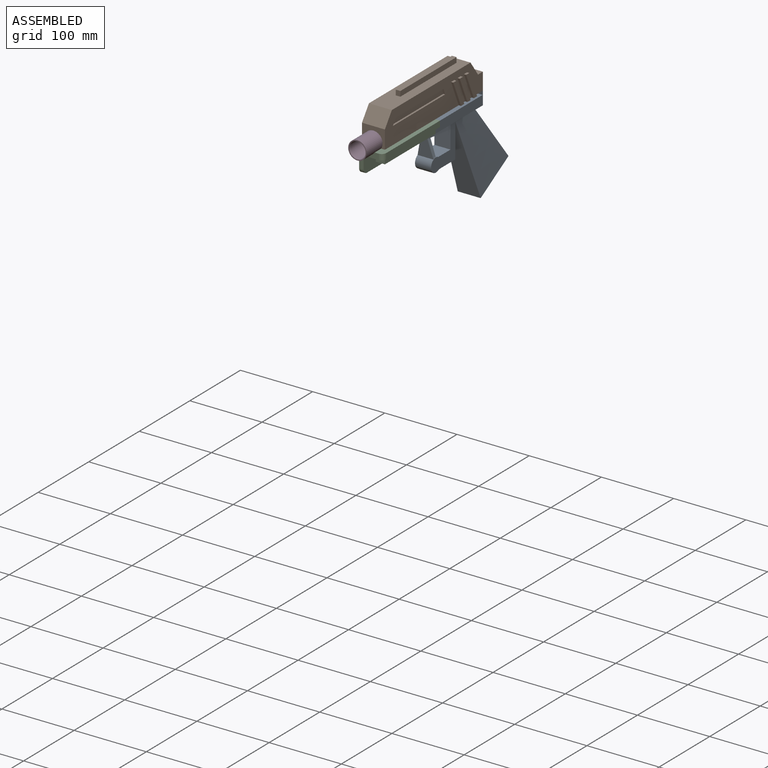
[diagram: assembled view]
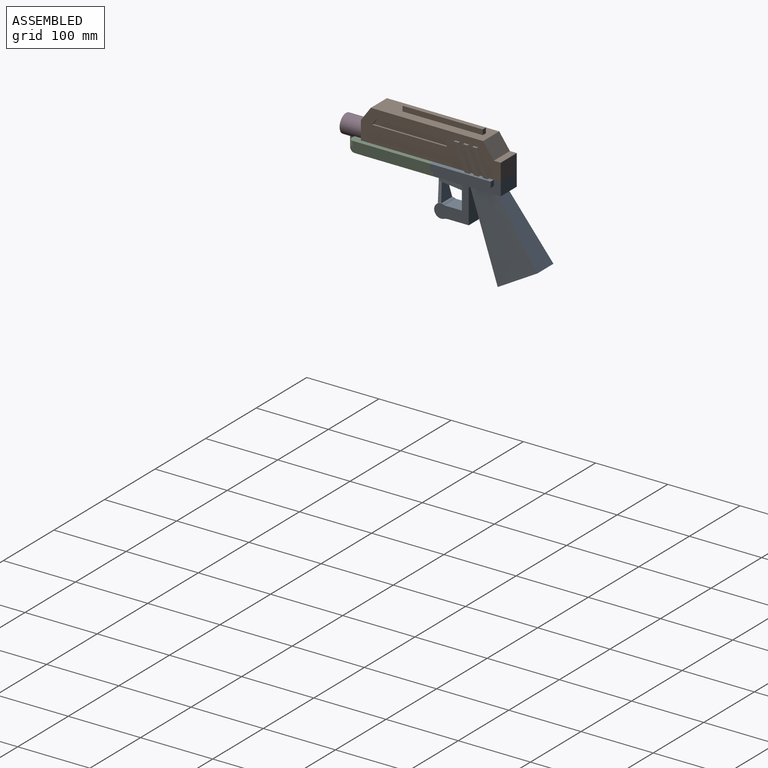
[diagram: assembled view, second angle]
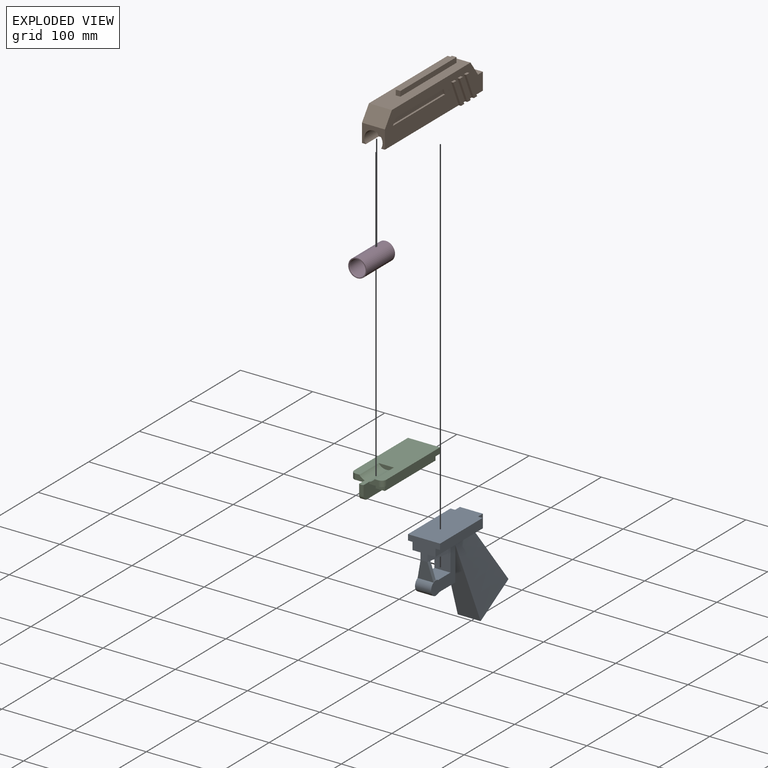
[diagram: exploded view]
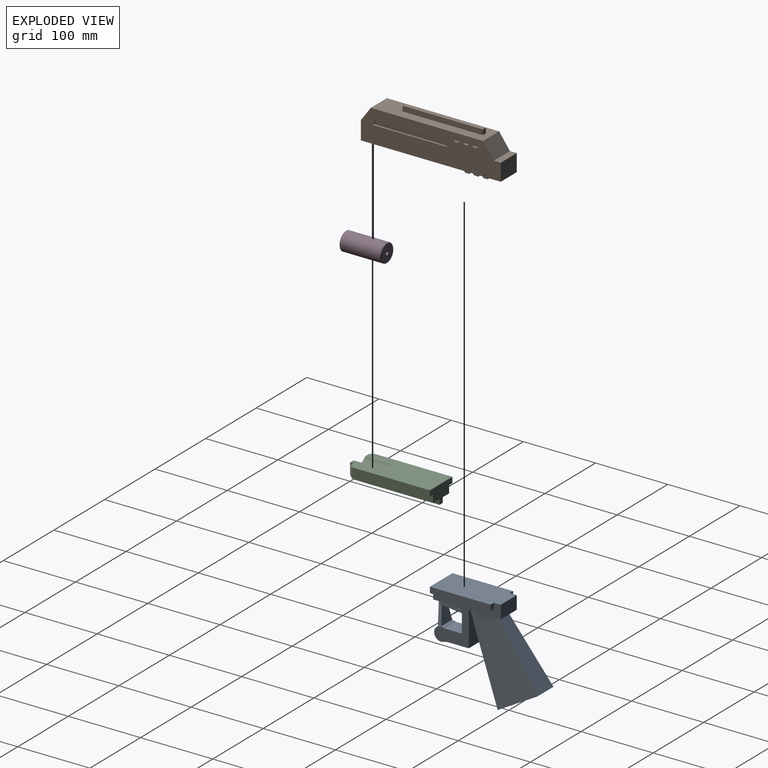
[diagram: exploded view, second angle]
ASSEMBLY  parts=4 mates=8
PART A: 35 faces, bbox 147.6x45.7x134.1 mm
  f0: cylinder r=9.53mm len=22.23mm, axis (0,1,0), area 639.1mm2, adj f2,f25,f26,f34
  f1: plane 28.16x22.23mm, normal (0,0,1), area 625.8mm2, adj f25,f26,f27,f34
  f2: plane 26.31x23.29mm, normal (0.99,0,0.12), area 402.2mm2, adj f0,f3,f5,f10,f32,f33
  f3: bspline ~24.13x7.78mm, area 114.6mm2, adj f2,f4,f28,f32
  f4: plane 24.16x22.26mm, normal (-0.99,0,-0.12), area 399.2mm2, adj f3,f5,f29,f31,f32,f33
  f5: bspline ~24.13x7.78mm, area 114.6mm2, adj f2,f4,f30,f33
  f6: plane 24.14x22.23mm, normal (0,0,-1), area 536.5mm2, adj f7,f25,f26,f31
  f7: plane 25.4x22.23mm, normal (1,0,0), area 564.5mm2, adj f6,f25,f26,f29
  f8: plane 93.66x31.75mm, normal (0,0,1), area 1456.7mm2, adj f9,f10,f11,f12,f21,f23,f24,f25
  f9: plane 93.66x18.26mm, normal (0,-1,0), area 1042.1mm2, adj f8,f10,f12,f13,f14,f15
  f10: plane 44.45x27.78mm, normal (1,0,0), area 771.2mm2, adj f2,f8,f9,f11,f13,f14,f16,f18
  f11: plane 93.66x18.26mm, normal (0,1,0), area 1042.1mm2, adj f8,f10,f12,f13,f17,f18
  f12: plane 31.75x18.26mm, normal (-1,0,0), area 579.6mm2, adj f8,f9,f11,f13
  f13: plane 93.66x44.45mm, normal (0,0,-1), area 4042.3mm2, adj f9,f10,f11,f12,f15,f16,f17,f19
  f14: plane 84.14x6.35mm, normal (0,0,1), area 534.3mm2, adj f9,f10,f15,f16
  f15: plane 7.94x6.35mm, normal (-1,0,0), area 50.4mm2, adj f9,f13,f14,f16
  f16: plane 84.14x7.94mm, normal (0,-1,0), area 667.8mm2, adj f10,f13,f14,f15
  f17: plane 7.94x6.35mm, normal (-1,0,0), area 50.4mm2, adj f11,f13,f18,f19
  f18: plane 84.14x6.35mm, normal (0,0,1), area 534.3mm2, adj f10,f11,f17,f19
  f19: plane 84.14x7.94mm, normal (0,1,0), area 667.8mm2, adj f10,f13,f17,f18
  f20: plane 54.99x31.75mm, normal (-0.5,0,0.87), area 2016.1mm2, adj f21,f22,f23,f24
  f21: bspline ~114.65x98.43mm, area 5430.3mm2, adj f8,f20,f22,f24
  f22: plane 114.65x43.43mm, normal (0.94,0,0.35), area 3114mm2, adj f20,f21,f23,f27
  f23: bspline ~114.65x98.43mm, area 5430.3mm2, adj f8,f20,f22,f24
  f24: plane 82.9x60.33mm, normal (-0.81,0,-0.59), area 2604.1mm2, adj f8,f20,f21,f23
  f25: plane 53.91x49.15mm, normal (0,-1,0), area 1097.8mm2, adj f0,f1,f6,f7,f8,f27,f30,f31
  f26: plane 52.71x47.94mm, normal (0,1,0), area 1097.8mm2, adj f0,f1,f6,f7,f8,f27,f28,f31
  f27: plane 50.8x22.23mm, normal (-1,0,0), area 1129mm2, adj f1,f8,f22,f25,f26
  f28: plane 36.51x9.53mm, normal (0.17,0.99,0), area 353mm2, adj f3,f8,f10,f26,f29
  f29: plane 31.74x22.23mm, normal (0,0,1), area 530.2mm2, adj f4,f7,f28,f30
  f30: plane 36.51x9.53mm, normal (0.17,-0.99,0), area 353mm2, adj f5,f8,f10,f25,f29
  f31: cylinder r=9.53mm len=22.23mm, axis (0,1,0), area 107.1mm2, adj f4,f6,f25,f26
  f32: bspline ~5.63x3.16mm, area 7.9mm2, adj f2,f3,f4,f26
  f33: bspline ~5.63x3.16mm, area 8mm2, adj f2,f4,f5,f25
  f34: cylinder r=19.05mm len=22.23mm, axis (0,1,0), area 155.5mm2, adj f0,f1,f25,f26
PART B: 50 faces, bbox 38.1x193.7x51.6 mm
  f0: plane 31.75x25.4mm, normal (0,-1,0), area 381.7mm2, adj f1,f3,f4,f8,f48
  f1: plane 193.68x44.45mm, normal (-1,0,0), area 6675.5mm2, adj f0,f2,f3,f4,f5,f6,f7,f21
  f2: plane 155.58x31.75mm, normal (0,0,1), area 4233.9mm2, adj f1,f3,f7,f8,f33,f34,f35,f36
  f3: plane 31.75x19.05mm, normal (0,-0.81,0.59), area 746.3mm2, adj f0,f1,f2,f8
  f4: plane 193.68x38.1mm, normal (0,0,-1), area 5736.7mm2, adj f0,f1,f5,f8,f9,f11,f12,f13
  f5: plane 31.75x23.81mm, normal (0,1,0), area 756mm2, adj f1,f4,f6,f8
  f6: plane 31.75x9.53mm, normal (0,0,1), area 302.4mm2, adj f1,f5,f7,f8
  f7: plane 31.75x20.64mm, normal (0,0.81,0.58), area 806.4mm2, adj f1,f2,f6,f8
  f8: plane 193.68x44.45mm, normal (1,0,0), area 6675.5mm2, adj f0,f2,f3,f4,f5,f6,f7,f9
  f9: plane 34.93x15.23mm, normal (0,0.92,0.4), area 121mm2, adj f4,f8,f10,f12
  f10: plane 6.35x3.18mm, normal (0,0,1), area 20.2mm2, adj f8,f9,f11,f12
  f11: plane 34.93x15.23mm, normal (0,-0.92,-0.4), area 121mm2, adj f4,f8,f10,f12
  f12: plane 34.93x21.58mm, normal (1,0,0), area 221.8mm2, adj f4,f9,f10,f11
  f13: plane 34.93x15.23mm, normal (0,0.92,0.4), area 121mm2, adj f4,f8,f14,f16
  f14: plane 6.35x3.18mm, normal (0,0,1), area 20.2mm2, adj f8,f13,f15,f16
  f15: plane 34.93x15.23mm, normal (0,-0.92,-0.4), area 121mm2, adj f4,f8,f14,f16
  f16: plane 34.93x21.58mm, normal (1,0,0), area 221.8mm2, adj f4,f13,f14,f15
  f17: plane 34.93x15.23mm, normal (0,0.92,0.4), area 121mm2, adj f4,f8,f18,f20
  f18: plane 6.35x3.18mm, normal (0,0,1), area 20.2mm2, adj f8,f17,f19,f20
  f19: plane 34.93x15.23mm, normal (0,-0.92,-0.4), area 121mm2, adj f4,f8,f18,f20
  f20: plane 34.93x21.58mm, normal (1,0,0), area 221.8mm2, adj f4,f17,f18,f19
  f21: plane 34.93x15.23mm, normal (0,-0.92,-0.4), area 121mm2, adj f1,f4,f22,f24
  f22: plane 6.35x3.18mm, normal (0,0,1), area 20.2mm2, adj f1,f21,f23,f24
  f23: plane 34.93x15.23mm, normal (0,0.92,0.4), area 121mm2, adj f1,f4,f22,f24
  f24: plane 34.93x21.58mm, normal (-1,0,0), area 221.8mm2, adj f4,f21,f22,f23
  f25: plane 34.93x15.23mm, normal (0,-0.92,-0.4), area 121mm2, adj f1,f4,f26,f28
  f26: plane 6.35x3.18mm, normal (0,0,1), area 20.2mm2, adj f1,f25,f27,f28
  f27: plane 34.93x15.23mm, normal (0,0.92,0.4), area 121mm2, adj f1,f4,f26,f28
  f28: plane 34.93x21.58mm, normal (-1,0,0), area 221.8mm2, adj f4,f25,f26,f27
  f29: plane 34.93x15.23mm, normal (0,-0.92,-0.4), area 121mm2, adj f1,f4,f30,f32
  f30: plane 6.35x3.18mm, normal (0,0,1), area 20.2mm2, adj f1,f29,f31,f32
  f31: plane 34.93x15.23mm, normal (0,0.92,0.4), area 121mm2, adj f1,f4,f30,f32
  f32: plane 34.93x21.58mm, normal (-1,0,0), area 221.8mm2, adj f4,f29,f30,f31
  f33: plane 7.14x6.35mm, normal (0,1,0), area 45.4mm2, adj f2,f34,f36,f37
  f34: plane 111.13x7.14mm, normal (-1,0,0), area 793.8mm2, adj f2,f33,f35,f37
  f35: plane 7.14x6.35mm, normal (0,-1,0), area 45.4mm2, adj f2,f34,f36,f37
  f36: plane 111.13x7.14mm, normal (1,0,0), area 793.8mm2, adj f2,f33,f35,f37
  f37: plane 111.13x6.35mm, normal (0,0,1), area 705.6mm2, adj f33,f34,f35,f36
  f38: plane 95.25x2.54mm, normal (0,0,-1), area 241.9mm2, adj f8,f39,f41,f42
  f39: plane 7.94x5.27mm, normal (0,0.83,-0.55), area 24.2mm2, adj f8,f38,f40,f42
  f40: plane 103.19x2.54mm, normal (0,0,1), area 262.1mm2, adj f8,f39,f41,f42
  f41: plane 7.94x2.67mm, normal (0,-0.95,-0.32), area 21.3mm2, adj f8,f38,f40,f42
  f42: plane 103.19x7.94mm, normal (1,0,0), area 787.5mm2, adj f38,f39,f40,f41
  f43: plane 95.25x2.54mm, normal (0,0,-1), area 241.9mm2, adj f1,f44,f46,f47
  f44: plane 7.94x2.67mm, normal (0,-0.95,-0.32), area 21.3mm2, adj f1,f43,f45,f47
  f45: plane 103.19x2.54mm, normal (0,0,1), area 262.1mm2, adj f1,f44,f46,f47
  f46: plane 7.94x5.27mm, normal (0,0.83,-0.55), area 24.2mm2, adj f1,f43,f45,f47
  f47: plane 103.19x7.94mm, normal (-1,0,0), area 787.5mm2, adj f43,f44,f45,f46
  f48: cylinder r=12.7mm len=25.4mm, axis (0,-1,0), area 1398.8mm2, adj f0,f4,f49
  f49: plane 25.4x19.84mm, normal (0,-1,0), area 424.7mm2, adj f4,f48
PART C: 23 faces, bbox 44.5x123.8x25.4 mm
  f0: plane 13.9x6.35mm, normal (0,-1,0), area 86.5mm2, adj f15,f16,f20,f21
  f1: plane 12.7x10.32mm, normal (0,-1,0), area 131mm2, adj f4,f6,f11,f16
  f2: plane 112.71x19.05mm, normal (0,0,1), area 868.4mm2, adj f3,f5,f7,f9,f12,f15,f19
  f3: plane 12.7x7.94mm, normal (0,-1,0), area 77mm2, adj f2,f8,f15,f19,f21
  f4: plane 100.01x12.7mm, normal (0,0,1), area 1270.2mm2, adj f1,f6,f9,f16
  f5: plane 12.7x10.32mm, normal (0,-1,0), area 131mm2, adj f2,f7,f10,f15
  f6: plane 100.01x10.32mm, normal (-1,0,0), area 1032mm2, adj f1,f4,f9,f11
  f7: plane 100.01x10.32mm, normal (1,0,0), area 1032mm2, adj f2,f5,f9,f10
  f8: plane 112.71x44.45mm, normal (0,0,-1), area 4192.6mm2, adj f3,f9,f12,f13,f14,f18,f19,f21
  f9: plane 44.45x25.4mm, normal (0,1,0), area 725.8mm2, adj f2,f4,f6,f7,f8,f10,f11,f12
  f10: plane 100.01x12.7mm, normal (0,0,1), area 1270.2mm2, adj f5,f7,f9,f15
  f11: plane 112.71x19.05mm, normal (0,0,1), area 868.4mm2, adj f1,f6,f9,f13,f14,f16,f18
  f12: plane 106.36x7.94mm, normal (1,0,0), area 844.3mm2, adj f2,f8,f9,f19
  f13: plane 12.7x7.94mm, normal (0,-1,0), area 77mm2, adj f8,f11,f16,f18,f21
  f14: plane 106.36x7.94mm, normal (-1,0,0), area 844.3mm2, adj f8,f9,f11,f18
  f15: plane 123.83x20.25mm, normal (1,0,0), area 1152.6mm2, adj f0,f2,f3,f5,f9,f10,f17,f20
  f16: plane 123.83x20.25mm, normal (-1,0,0), area 1152.6mm2, adj f0,f1,f4,f9,f11,f13,f17,f20
  f17: plane 117.48x6.35mm, normal (0,0,1), area 746mm2, adj f9,f15,f16,f20
  f18: cylinder r=6.35mm len=7.94mm, axis (0,0,-1), area 79.2mm2, adj f8,f11,f13,f14
  f19: cylinder r=6.35mm len=7.94mm, axis (0,0,1), area 79.2mm2, adj f2,f3,f8,f12
  f20: cylinder r=6.35mm len=6.35mm, axis (-1,0,0), area 63.3mm2, adj f0,f15,f16,f17
  f21: cylinder r=12.7mm len=49.21mm, axis (0,-1,0), area 1013.3mm2, adj f0,f3,f8,f13,f15,f16,f22
  f22: plane 21x5.56mm, normal (0,-1,0), area 82mm2, adj f8,f21
PART D: 9 faces, bbox 25.4x25.4x57.2 mm
  f0: cylinder r=2.54mm len=5.08mm, axis (0,0,-1), area 50.7mm2, adj f3,f5
  f1: cylinder r=12.7mm len=56.39mm, axis (0,0,-1), area 4499.6mm2, adj f2,f8
  f2: plane 25.4x25.4mm, normal (0,0,1), area 100.8mm2, adj f1,f7
  f3: plane 23.88x23.88mm, normal (0,0,-1), area 427.5mm2, adj f0,f8
  f4: cylinder r=11.11mm len=47.52mm, axis (0,0,1), area 3317.8mm2, adj f6,f7
  f5: plane 6.99x6.99mm, normal (0,0,1), area 18.1mm2, adj f0,f6
  f6: cone r=3.49mm half-angle=65deg, axis (0,0,1), area 385.8mm2, adj f4,f5
  f7: cone r=11.11mm half-angle=5deg, axis (0,0,1), area 205.8mm2, adj f2,f4
  f8: cone r=12.7mm half-angle=45deg, axis (0,0,1), area 83.4mm2, adj f1,f3
PLACE A rot(axis=(-0.71,0.71,0),180deg) t=(0,-93.66,0)mm
PLACE B at identity fixed
PLACE C rot(axis=(0,1,0),180deg) t=(0,-93.66,0)mm
PLACE D rot(axis=(1,0,0),90deg) t=(0,-168.28,7.14)mm
MATE planar A.f10 <-> C.f9  axis (0,-1,0) through (0,-93.66,-10.09)mm
MATE slider B.f48 <-> D.f1  axis (0,-1,0) through (0,-180.98,7.14)mm
MATE planar A.f9 <-> C.f6  axis (1,0,0) through (15.88,-43.78,-12.43)mm
MATE slider B.f48 <-> C.f21  axis (0,-1,0) through (0,-180.98,7.14)mm
MATE planar C.f8 <-> B.f4  axis (0,0,1) through (0,-142.67,0)mm
MATE planar C.f1 <-> B.f0  axis (0,-1,0) through (9.53,-193.68,-13.1)mm
MATE planar A.f13 <-> B.f4  axis (0,0,1) through (0,-48.09,0)mm
MATE planar B.f49 <-> D.f4  axis (0,-1,0) through (0,-168.28,8.96)mm
